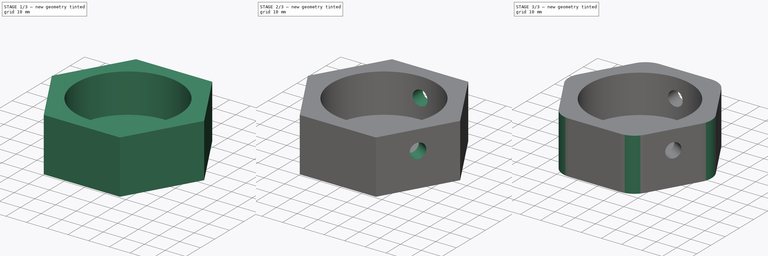
[diagram: build sequence overview — one tinted view per stage of 3, left to right]
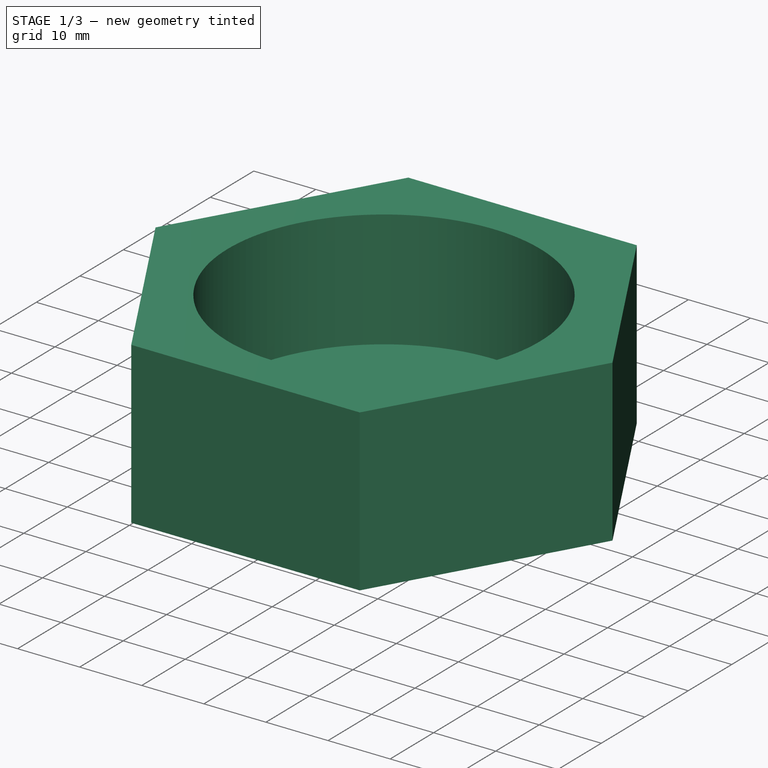
[diagram: stage 1 of 3 — iso view after this stage's code; geometry added in this stage tinted green]
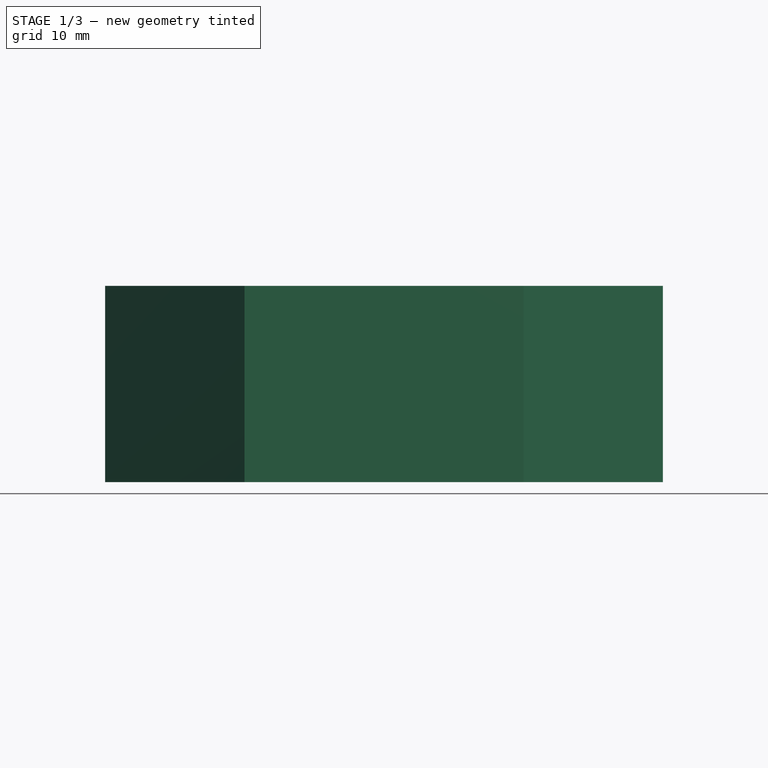
[diagram: stage 1 of 3 — front view after this stage's code; geometry added in this stage tinted green]
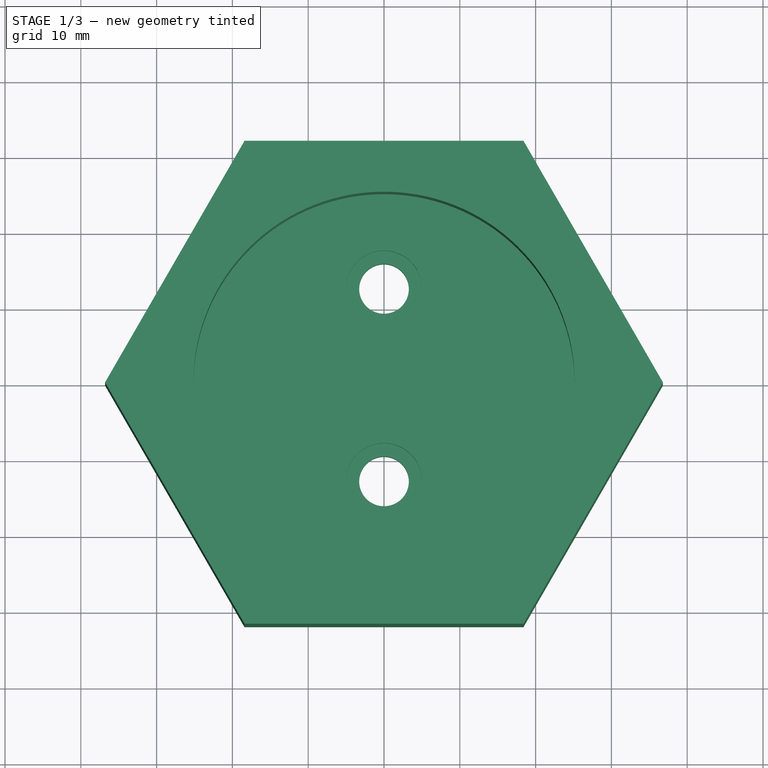
[diagram: stage 1 of 3 — top view after this stage's code; geometry added in this stage tinted green]
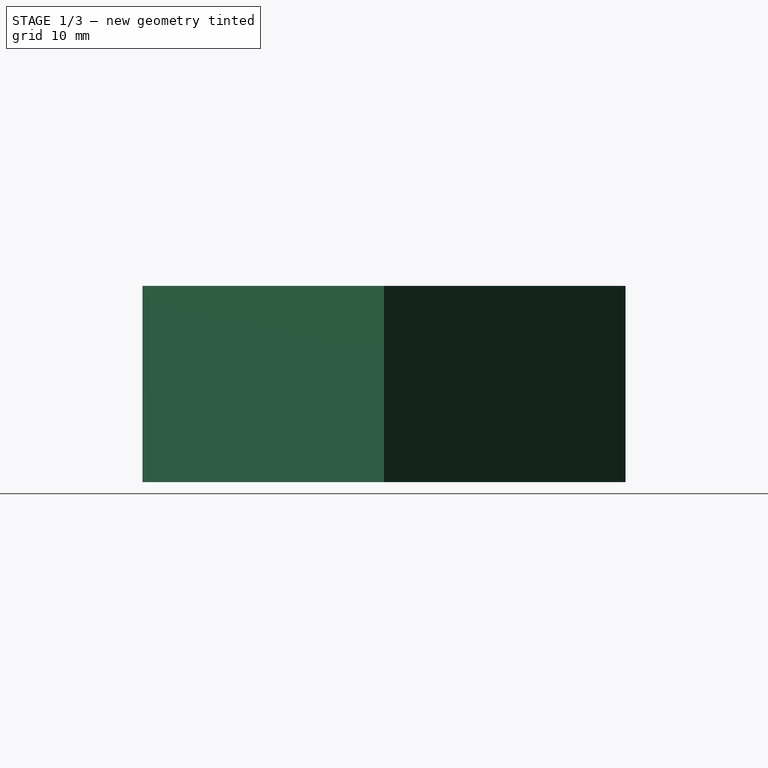
[diagram: stage 1 of 3 — right view after this stage's code; geometry added in this stage tinted green]
FCSTD DOCUMENT  (FreeCAD 0.21R33675 (Git))
Label: resonance_speaker_mount
License: All rights reserved
LicenseURL: http://en.wikipedia.org/wiki/All_rights_reserved
objects: Sketcher::SketchObject×5, PartDesign::Plane×3, PartDesign::Pocket×3, PartDesign::PolarPattern×2, Spreadsheet::Sheet×1, PartDesign::Pad×1, PartDesign::Hole×1, PartDesign::Fillet×1, PartDesign::Body×1
note: 23 computed .brp shape members not serialized (recipe doc carries the construction recipe); baked Part::Feature solids carry a one-line shape summary decoded from their .brp

FEATURE [Spreadsheet::Sheet] Spreadsheet
  cells = A2='Design Parameters; A3='speaker_diameter; B3(speaker_diameter)==50 mm; A4='speaker_height; B4(speaker_height)==21 mm; A6='threaded_insert_10_32_length; B6(threaded_insert_10_32_length)==0.225 in; A7='threaded_insert_10_32_top_diameter; B7(threaded_insert_10_32_top_diameter)==0.297 in; A8='threaded_insert_10_32_bottom_diameter; B8(threaded_insert_10_32_bottom_diameter)==0.272 in; A10='qtr_20_head_diameter; B10(qtr_20_head_diameter)==0.375 in; A11='qtr_20_head_thickness; B11(qtr_20_head_thickness)==0.078 in; A12='qtr_20_head_side_margin; B12(qtr_20_head_side_margin)==0.25 mm; A13='qtr_20_head_depth_margin; B13(qtr_20_head_depth_margin)==0.5 mm; A14='qtr_20_hole_diameter; B14(qtr_20_hole_diameter)==0.258 in; A16='floor_thickness; B16(floor_thickness)==7 mm; A17='side_wall_margin; B17(side_wall_margin)==1 mm; A18='side_wall_thickness; B18(side_wall_thickness)==threaded_insert_10_32_length + side_wall_margin; A20='speaker_pocket_margin; B20(speaker_pocket_margin)==0.15 mm; A21='speaker_pocket_diameter; B21(speaker_pocket_diameter)==speaker_diameter + 2 * speaker_pocket_margin; A22='speaker_pocket_depth; B22(speaker_pocket_depth)==0.9 * speaker_height; A23='speaker_pocket_wall_thickness; B23(speaker_pocket_wall_thickness)==1.1 * threaded_insert_10_32_length; A25='base_hex_minor_diameter; B25(base_hex_minor_diameter)==speaker_pocket_diameter + 2 * side_wall_thickness; A26='base_height; B26(base_height)==floor_thickness + speaker_pocket_depth; A28='mount_hole_separation; B28(mount_hole_separation)==1 in; A29='mount_hole_counterbore_diameter; B29(mount_hole_counterbore_diameter)==qtr_20_head_diameter + 2 * qtr_20_head_side_margin; A30='mount_hole_counterbore_depth; B30(mount_hole_counterbore_depth)==qtr_20_head_thickness + qtr_20_head_depth_margin; A32='set_screw_hole_height; B32(set_screw_hole_height)==floor_thickness + 0.5 * speaker_pocket_depth; A33='set_screw_hole_diameter; B33(set_screw_hole_diameter)==0.5 * threaded_insert_10_32_top_diameter + 0.5 * threaded_insert_10_32_bottom_diameter; A34='set_screw_hole_depth; B34(set_screw_hole_depth)==0.25 * base_hex_minor_diameter; A35='set_screw_polar_pattern_angle; B35(set_screw_polar_pattern_angle)==360 deg; A36='set_screw_polar_pattern_number; B36(set_screw_polar_pattern_number)=3; A38='cable_hole_radial_offset; B38(cable_hole_radial_offset)==18 mm; A39='cable_hole_diameter; B39(cable_hole_diameter)==6 mm; A40='cable_hole_polar_pattern_angle; B40(cable_hole_polar_pattern_angle)==360 deg; A41='cable_hole_polar_pattern_number; B41(cable_hole_polar_pattern_number)=2; A43='side_edge_fillet_radius; B43(side_edge_fillet_radius)==10 mm
FEATURE [Sketcher::SketchObject] Sketch  label="BaseHexSketch"
  FullyConstrained = true
  MapMode = 5
  Support = -> [XY_Plane]
  expr: Constraints[19] = Spreadsheet.base_hex_minor_diameter
  sketch-geometry (7):
    g0: LineSegment StartX=18.3973 StartY=-31.865 StartZ=0 EndX=36.7945 EndY=3.6e-15 EndZ=0
    g1: LineSegment StartX=36.7945 StartY=3.6e-15 StartZ=0 EndX=18.3973 EndY=31.865 EndZ=0
    g2: LineSegment StartX=18.3973 StartY=31.865 StartZ=0 EndX=-18.3973 EndY=31.865 EndZ=0
    g3: LineSegment StartX=-18.3973 StartY=31.865 StartZ=0 EndX=-36.7945 EndY=0 EndZ=0
    g4: LineSegment StartX=-36.7945 StartY=0 StartZ=0 EndX=-18.3973 EndY=-31.865 EndZ=0
    g5: LineSegment StartX=-18.3973 StartY=-31.865 StartZ=0 EndX=18.3973 EndY=-31.865 EndZ=0
    g6: Circle CenterX=0 CenterY=0 CenterZ=0 NormalX=0 NormalY=0 NormalZ=1 AngleXU=0 Radius=36.7945
  constraints (16):
    c: Coincident(g0,g1)
    c: Coincident(g1,g2)
    c: Coincident(g2,g3)
    c: Coincident(g3,g4)
    c: Coincident(g4,g5)
    c: Coincident(g5,g0)
    c: Equal(g0, g1-g5) x5
    c: PointOnObject(g0,g6)
    c: PointOnObject(g1,g6)
    c: PointOnObject(g2,g6)
    c: PointOnObject(g3,g6)
    c: PointOnObject(g4,g6)
    c: PointOnObject(g5,g6)
    c: Coincident(g6,g-1)
    c: Horizontal(g2)
    c: DistanceY(g0,g1) = 63.73
FEATURE [PartDesign::Pad] Pad  label="BaseHexPad"
  Direction = (0,0,1)
  Length = 25.9
  Length2 = 10
  Profile = -> Sketch
  ReferenceAxis = -> Sketch [N_Axis]
  Type = 0
  expr: Length = Spreadsheet.base_height
FEATURE [PartDesign::Plane] DatumPlane  label="TopDatumPlane"
  AttachmentOffset = pos=(0,0,25.9) rot=(0,0,1;0rad)
  Length = 83.7805
  MapMode = 5
  Placement = pos=(0,0,25.9) rot=(0,0,1;0rad)
  ResizeMode = 0
  Support = -> [XY_Plane]
  Width = 77.125
  expr: .AttachmentOffset.Base.z = Spreadsheet.base_height
FEATURE [Sketcher::SketchObject] Sketch001  label="SpeakerPocketSketch"
  FullyConstrained = true
  MapMode = 5
  Placement = pos=(0,0,25.9) rot=(0,0,1;0rad)
  Support = -> [DatumPlane]
  expr: Constraints[1] = Spreadsheet.speaker_pocket_diameter
  sketch-geometry (1):
    g0: Circle CenterX=0 CenterY=0 CenterZ=0 NormalX=0 NormalY=0 NormalZ=1 AngleXU=0 Radius=25.15
  constraints (2):
    c: Coincident(g0,g-1)
    c: Diameter(g0) = 50.3
FEATURE [PartDesign::Pocket] Pocket  label="SpeakerPocket"
  BaseFeature = -> Pad
  Direction = (0,0,-1)
  Length = 18.9
  Length2 = 5
  Profile = -> Sketch001
  ReferenceAxis = -> Sketch001 [N_Axis]
  Type = 0
  expr: Length = Spreadsheet.speaker_pocket_depth
FEATURE [PartDesign::Plane] DatumPlane001  label="PocketBottomDatumPlane"
  AttachmentOffset = pos=(0,0,7) rot=(0,0,1;0rad)
  Length = 83.7805
  MapMode = 5
  Placement = pos=(0,0,7) rot=(0,0,1;0rad)
  ResizeMode = 0
  Support = -> [XY_Plane]
  Width = 77.125
  expr: .AttachmentOffset.Base.z = Spreadsheet.floor_thickness
FEATURE [Sketcher::SketchObject] Sketch002  label="MountHoleSketch"
  FullyConstrained = true
  MapMode = 5
  Placement = pos=(0,0,7) rot=(0,0,1;0rad)
  Support = -> [DatumPlane001]
  expr: Constraints[8] = Spreadsheet.qtr_20_hole_diameter
  expr: Constraints[9] = Spreadsheet.mount_hole_separation
  sketch-geometry (4):
    g0: LineSegment StartX=0 StartY=-12.7 StartZ=0 EndX=0 EndY=0 EndZ=0
    g1: LineSegment StartX=0 StartY=0 StartZ=0 EndX=0 EndY=12.7 EndZ=0
    g2: Circle CenterX=0 CenterY=12.7 CenterZ=0 NormalX=0 NormalY=0 NormalZ=1 AngleXU=0 Radius=3.2766
    g3: Circle CenterX=0 CenterY=-12.7 CenterZ=0 NormalX=0 NormalY=0 NormalZ=1 AngleXU=0 Radius=3.2766
  constraints (10):
    c: Coincident(g0,g1)
    c: Coincident(g-1,g0)
    c: Equal(g1,g0)
    c: Vertical(g1)
    c: Vertical(g0)
    c: Coincident(g2,g1)
    c: Coincident(g3,g0)
    c: Equal(g2,g3)
    c: Diameter(g2) = 6.5532
    c: DistanceY(g3,g2) = 25.4
FEATURE [PartDesign::Hole] Hole  label="MountHole"
  BaseFeature = -> Pocket
  CustomThreadClearance = 0
  Depth = 202.976
  DepthType = 1
  Diameter = 6.5532
  DrillForDepth = false
  DrillPoint = 1
  DrillPointAngle = 118
  HoleCutCountersinkAngle = 90
  HoleCutCustomValues = false
  HoleCutDepth = 2.4812
  HoleCutDiameter = 10.025
  HoleCutType = 1
  ModelThread = false
  Profile = -> Sketch002
  Tapered = false
  TaperedAngle = 90
  ThreadClass = 0
  ThreadDepth = 202.976
  ThreadDepthType = 0
  ThreadDirection = 0
  ThreadFit = 1
  ThreadSize = 0
  ThreadType = 0
  Threaded = false
  UseCustomThreadClearance = false
  expr: Diameter = Spreadsheet.qtr_20_hole_diameter
  expr: HoleCutDepth = Spreadsheet.mount_hole_counterbore_depth
  expr: HoleCutDiameter = Spreadsheet.mount_hole_counterbore_diameter
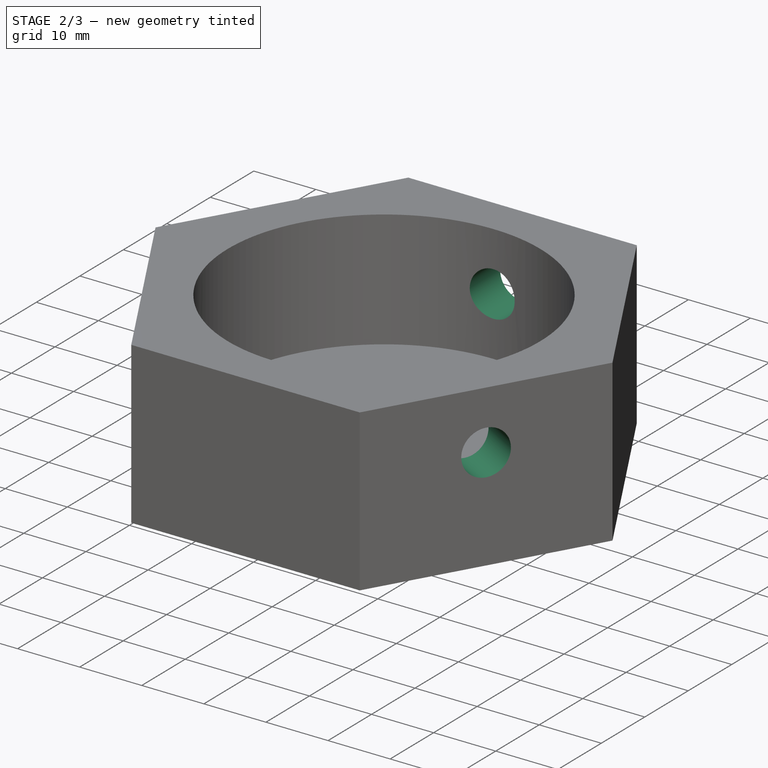
[diagram: stage 2 of 3 — iso view after this stage's code; geometry added in this stage tinted green]
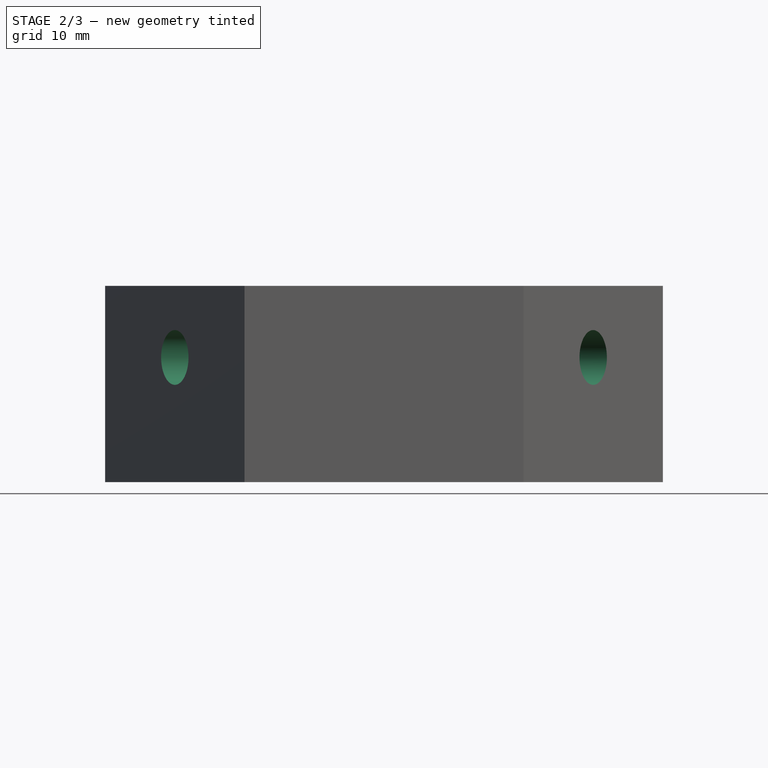
[diagram: stage 2 of 3 — front view after this stage's code; geometry added in this stage tinted green]
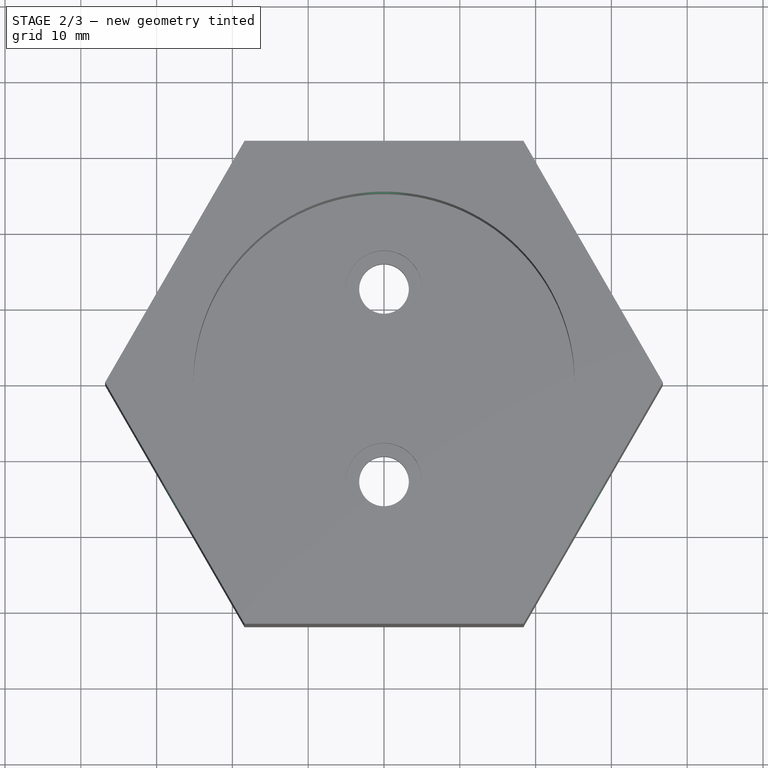
[diagram: stage 2 of 3 — top view after this stage's code; geometry added in this stage tinted green]
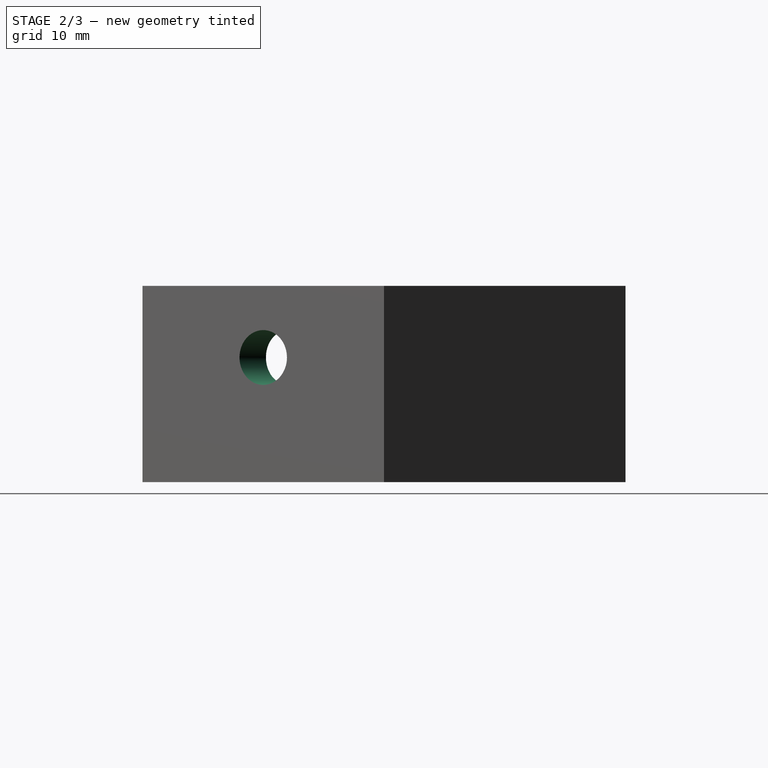
[diagram: stage 2 of 3 — right view after this stage's code; geometry added in this stage tinted green]
FEATURE [PartDesign::Plane] DatumPlane002  label="RearDatumPlane"
  AttachmentOffset = pos=(0,0,31.865) rot=(0,0,1;0rad)
  Length = 82.3565
  MapMode = 5
  Placement = pos=(0,31.865,7.1e-15) rot=(0,0.707107,0.707107;3.14159rad)
  ResizeMode = 0
  Support = -> [XZ_Plane]
  Width = 62.871
  expr: .AttachmentOffset.Base.z = Spreadsheet.base_hex_minor_diameter * 0.5
FEATURE [Sketcher::SketchObject] Sketch003  label="SetScrewHoleSketch"
  FullyConstrained = true
  MapMode = 5
  Placement = pos=(0,31.865,7.1e-15) rot=(0,0.707107,0.707107;3.14159rad)
  Support = -> [DatumPlane002]
  expr: Constraints[2] = Spreadsheet.set_screw_hole_height
  expr: Constraints[4] = Spreadsheet.set_screw_hole_diameter
  sketch-geometry (2):
    g0: LineSegment StartX=0 StartY=16.45 StartZ=0 EndX=0 EndY=0 EndZ=0
    g1: Circle CenterX=0 CenterY=16.45 CenterZ=0 NormalX=0 NormalY=0 NormalZ=1 AngleXU=0 Radius=3.61315
  constraints (5):
    c: Vertical(g0)
    c: Coincident(g0,g-1)
    c: DistanceY(g0,g0) = 16.45
    c: Coincident(g1,g0)
    c: Diameter(g1) = 7.2263
FEATURE [PartDesign::Pocket] Pocket001  label="SetScrewHolePocket"
  BaseFeature = -> Hole
  Direction = (0,-1,2e-16)
  Length = 15.9325
  Length2 = 5
  Profile = -> Sketch003
  ReferenceAxis = -> Sketch003 [N_Axis]
  Type = 0
  expr: Length = Spreadsheet.set_screw_hole_depth
FEATURE [PartDesign::PolarPattern] PolarPattern
  Angle = 360
  Axis = -> Z_Axis
  BaseFeature = -> Pocket001
  Occurrences = 3
  Originals = -> [Pocket001]
  expr: Angle = Spreadsheet.set_screw_polar_pattern_angle
  expr: Occurrences = Spreadsheet.set_screw_polar_pattern_number
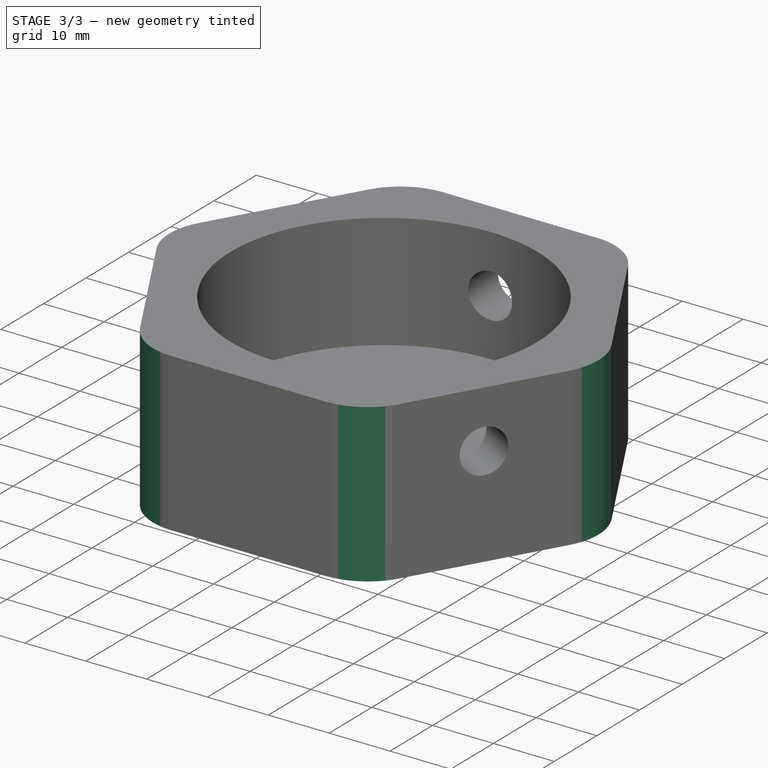
[diagram: stage 3 of 3 — iso view after this stage's code; geometry added in this stage tinted green]
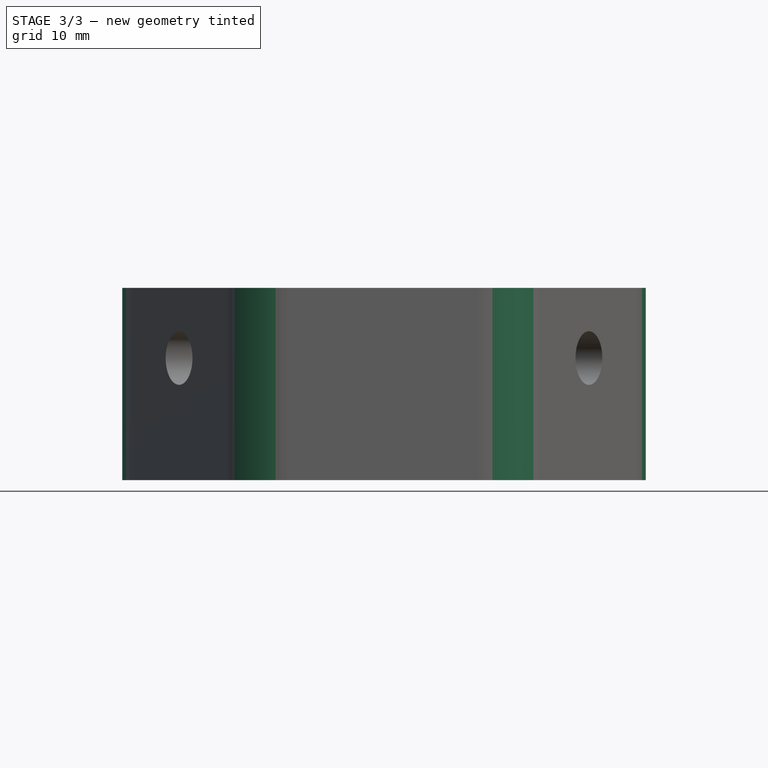
[diagram: stage 3 of 3 — front view after this stage's code; geometry added in this stage tinted green]
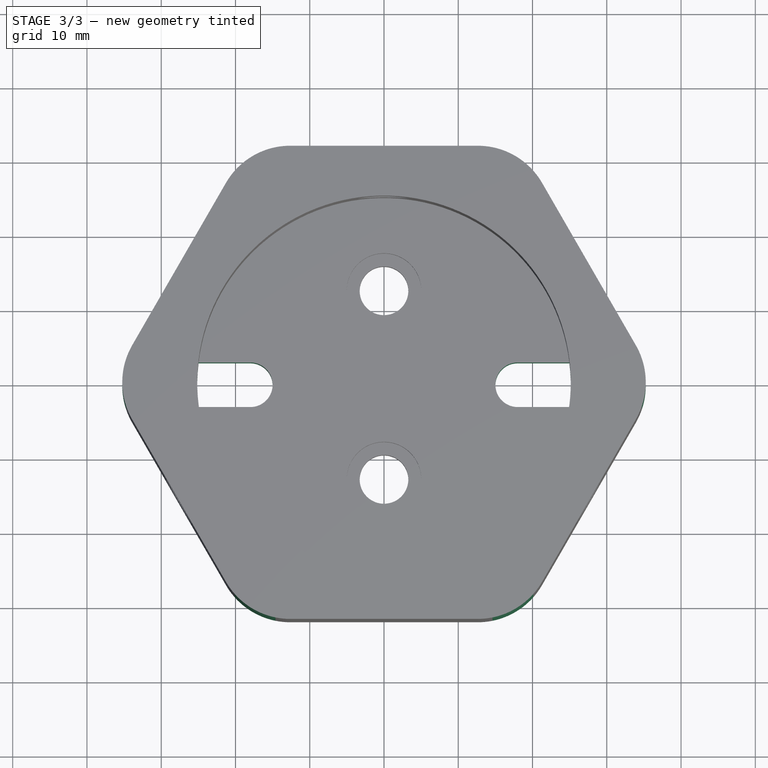
[diagram: stage 3 of 3 — top view after this stage's code; geometry added in this stage tinted green]
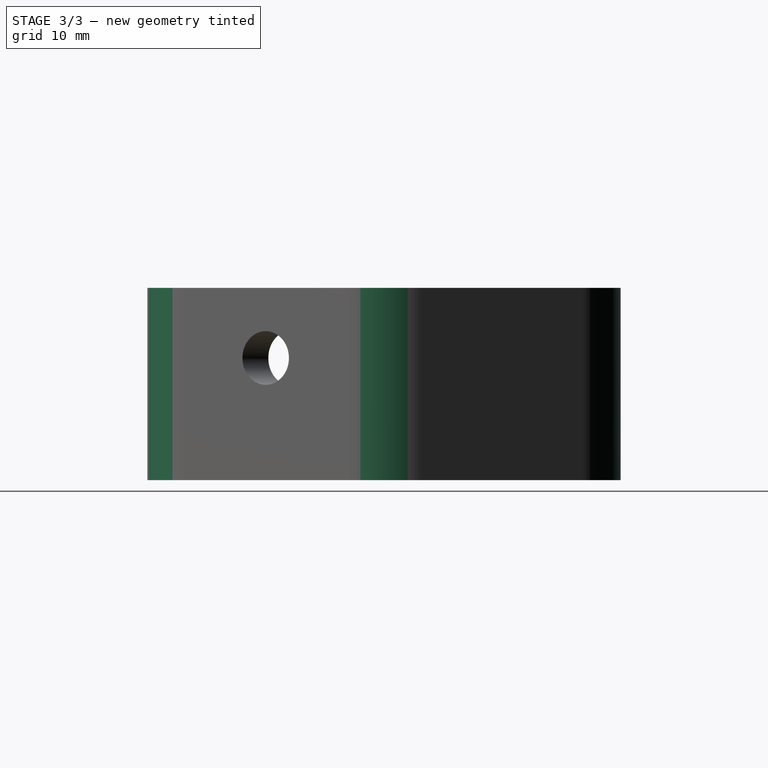
[diagram: stage 3 of 3 — right view after this stage's code; geometry added in this stage tinted green]
FEATURE [Sketcher::SketchObject] Sketch004  label="CableHoleSketch"
  FullyConstrained = true
  MapMode = 5
  Support = -> [XY_Plane]
  expr: Constraints[3] = Spreadsheet.cable_hole_radial_offset
  expr: Constraints[4] = Spreadsheet.cable_hole_diameter
  expr: Constraints[6] = Spreadsheet.speaker_pocket_diameter
  sketch-geometry (10):
    g0: LineSegment StartX=0 StartY=0 StartZ=0 EndX=18 EndY=0 EndZ=0
    g1: Circle CenterX=18 CenterY=0 CenterZ=0 NormalX=0 NormalY=0 NormalZ=1 AngleXU=0 Radius=3
    g2: Circle CenterX=0 CenterY=0 CenterZ=0 NormalX=0 NormalY=0 NormalZ=1 AngleXU=0 Radius=25.15
    g3: LineSegment StartX=18 StartY=3 StartZ=0 EndX=24.9704 EndY=3 EndZ=0
    g4: LineSegment StartX=18 StartY=-3 StartZ=0 EndX=24.9704 EndY=-3 EndZ=0
    g5: LineSegment StartX=18 StartY=3 StartZ=0 EndX=18 EndY=0 EndZ=0
    g6: LineSegment StartX=18 StartY=0 StartZ=0 EndX=18 EndY=-3 EndZ=0
    g7: ArcOfCircle CenterX=18 CenterY=-1e-16 CenterZ=0 NormalX=0 NormalY=0 NormalZ=1 AngleXU=0 Radius=3 StartAngle=1.5708 EndAngle=4.71239
    g8: GeomPoint X=15 Y=0 Z=0
    g9: ArcOfCircle CenterX=0 CenterY=0 CenterZ=0 NormalX=0 NormalY=0 NormalZ=1 AngleXU=0 Radius=25.15 StartAngle=6.16362 EndAngle=6.40275
  constraints (27):
    c: Horizontal(g0)
    c: Coincident(g0,g-1)
    c: Coincident(g1,g0)
    c: DistanceX(g0,g0) = 18
    c: Diameter(g1) = 6
    c: Coincident(g2,g0)
    c: Diameter(g2) = 50.3
    c: Horizontal(g3)
    c: Horizontal(g4)
    c: Vertical(g5)
    c: Coincident(g5,g0)
    c: PointOnObject(g5,g1)
    c: Coincident(g6,g0)
    c: Vertical(g6)
    c: PointOnObject(g6,g1)
    c: Coincident(g5,g3)
    c: Coincident(g4,g6)
    c: PointOnObject(g3,g2)
    c: PointOnObject(g4,g2)
    c: Coincident(g7,g3)
    c: Coincident(g7,g4)
    c: PointOnObject(g8,g0)
    c: PointOnObject(g8,g1)
    c: PointOnObject(g8,g7)
    c: Coincident(g9,g0)
    c: Coincident(g9,g3)
    c: PointOnObject(g9,g4)
FEATURE [PartDesign::Pocket] Pocket002  label="CableHolePocket"
  BaseFeature = -> PolarPattern
  Direction = (0,0,-1)
  Length = 5
  Length2 = 5
  Profile = -> Sketch004
  ReferenceAxis = -> Sketch004 [N_Axis]
  Reversed = true
  Type = 1
FEATURE [PartDesign::PolarPattern] PolarPattern001  label="CableHolePolarPattern"
  Angle = 360
  Axis = -> Sketch004 [N_Axis]
  BaseFeature = -> Pocket002
  Occurrences = 2
  Originals = -> [Pocket002]
  expr: Angle = Spreadsheet.cable_hole_polar_pattern_angle
  expr: Occurrences = Spreadsheet.cable_hole_polar_pattern_number
FEATURE [PartDesign::Fillet] Fillet  label="SideEdgeFillet"
  Base = -> PolarPattern001 [Edge32,Edge37,Edge35,Edge6,Edge1,Edge4]
  BaseFeature = -> PolarPattern001
  Radius = 10
  SupportTransform = false
  UseAllEdges = false
  expr: Radius = Spreadsheet.side_edge_fillet_radius
FEATURE [PartDesign::Body] Body
  Group = -> [Sketch,Pad,DatumPlane,Sketch001,Pocket,DatumPlane001,Sketch002,Hole,DatumPlane002,Sketch003,Pocket001,PolarPattern,Sketch004,Pocket002,PolarPattern001,Fillet]
  Origin = -> Origin
  Tip = -> Fillet
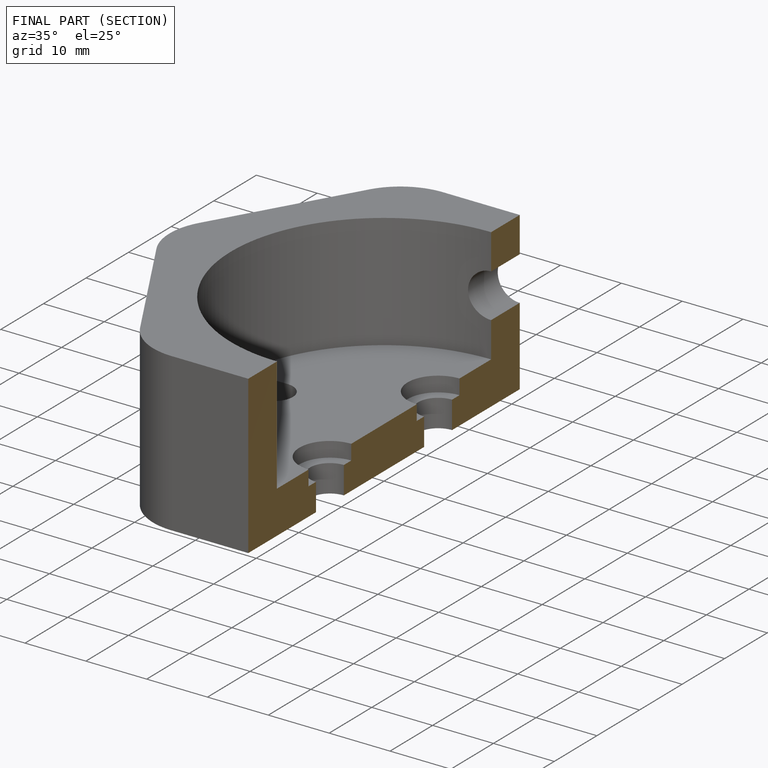
[diagram: finished part — half-section view (interior)]
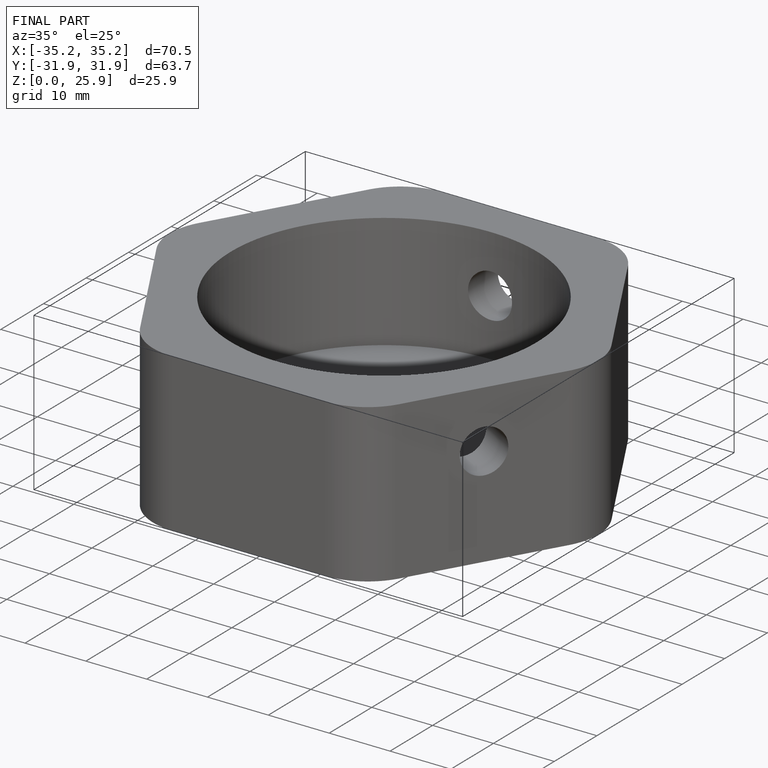
[diagram: finished part — iso view with bounding-box wireframe]
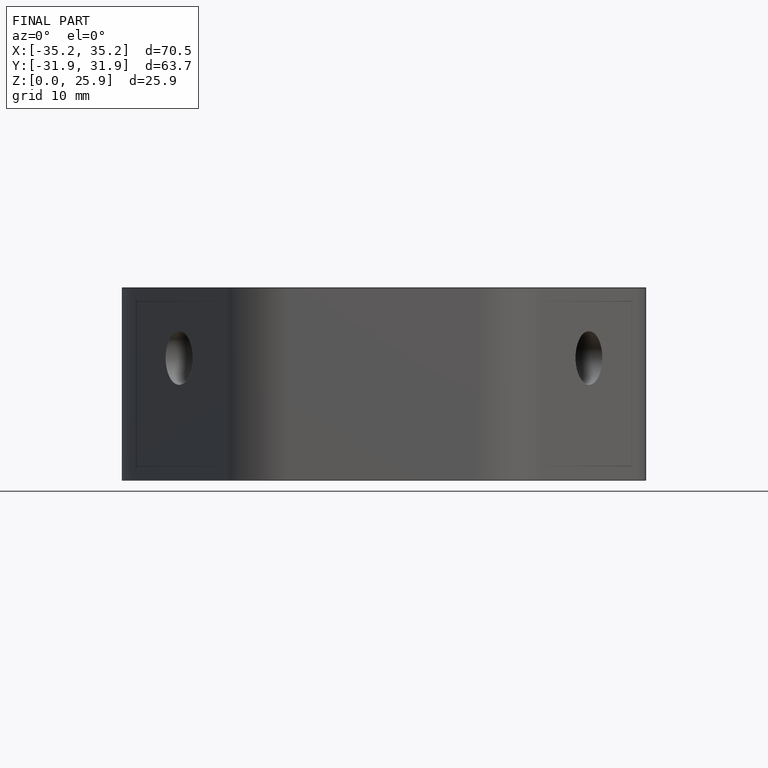
[diagram: finished part — front view with bounding-box wireframe]
